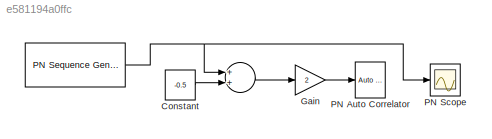
MODEL slx_e581194a0ffc
KIND model
BLOCK [Reference]    REF=commseqgen2/PN Sequence
Generator
  Ports = [0, 1]
  SourceBlock = commseqgen2/PN Sequence\nGenerator
  SourceType = PN Sequence Generator
  Ts = 1e-3
  bitPackDataSigned = off
  bitPackedOutDType = double
  bitPackedOutputs = off
  frameBased = off
  ini_sta = [1 0 0 1]
  maxOutSize = [10 1]
  maxOutSizeMode = Dialog parameter
  numPackedBits = 8
  outBitMaskSource = Dialog parameter
  outDataType = double
  outVarSiz = off
  poly = [1 0 0 1 1]
  reset = off
  sampPerFrame = 1
  shift = 0
BLOCK [Sum]     
  InputSameDT = off
  OutDataTypeStr = Inherit: Inherit via internal rule
  Ports = [2, 1]
  SaturateOnIntegerOverflow = off
BLOCK [Scope]  PN Scope
  Floating = off
  NumInputPorts = 1
  Ports = [1]
  SaveName = ScopeData1
  ShowLegends = off
  YMax = 1.5
  YMin = -0.5
BLOCK [Constant] Constant
  Value = -0.5
BLOCK [Gain] Gain
  Gain = 2
  OutDataTypeStr = Inherit: Inherit via internal rule
  ParamDataTypeStr = Inherit: Inherit via internal rule
  SaturateOnIntegerOverflow = off
BLOCK [Reference] PN Auto Correlator  REF=simulink_extras/Additional
Sinks/Auto
Correlator
  HowOften = 64
  Ports = [1]
  SourceBlock = simulink_extras/Additional\nSinks/Auto\nCorrelator
  SourceType = Auto Correlator
  npts = 64
  sampleT = 1e-3
LINE     :1 -> Gain:1
NET  :1 ->     :1,  PN Scope:1
LINE Constant:1 ->     :2
LINE Gain:1 -> PN Auto Correlator:1
note: NET lines group one-source signal fan-out (src -> all destinations, sorted); 1:1 wires keep LINE
